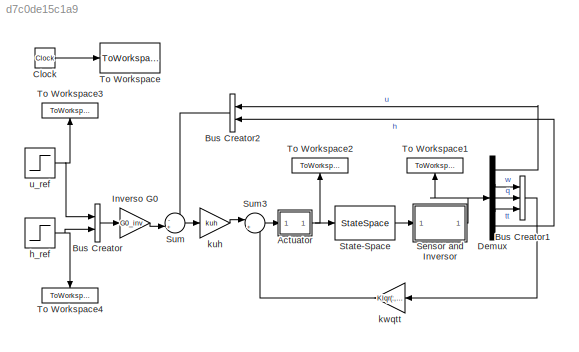
MODEL slx_d7c0de15c1a9
KIND model
CONFIG AbsTol = auto
CONFIG EnableMultiTasking = off
CONFIG FixedStep = auto
CONFIG MaxStep = auto
CONFIG MinStep = auto
CONFIG RelTol = 1e-3
CONFIG SampleTimeConstraint = Unconstrained
CONFIG Solver = VariableStepAuto
CONFIG SolverName = VariableStepAuto
CONFIG StartTime = 0.0
CONFIG StopTime = 100
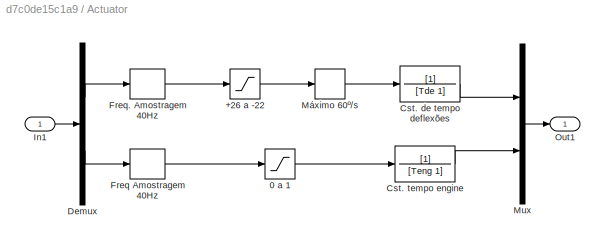
BLOCK [SubSystem] Actuator
  Ports = [1, 1]
  RequestExecContextInheritance = off
BLOCK [Saturate] Actuator/+26 a -22
  LowerLimit = demin
  UpperLimit = demax
BLOCK [Saturate] Actuator/0 a 1
  LowerLimit = dtmin
  UpperLimit = dtmax
BLOCK [TransferFcn] Actuator/Cst. de tempo deflexões
  Denominator = [Tde 1]
BLOCK [TransferFcn] Actuator/Cst. tempo engine
  Denominator = [Teng 1]
BLOCK [Demux] Actuator/Demux
  Outputs = 2
  Ports = [1, 2]
BLOCK [ZeroOrderHold] Actuator/Freq Amostragem 40Hz
  SampleTime = 1/f_amostr
BLOCK [ZeroOrderHold] Actuator/Freq. Amostragem 40Hz
  SampleTime = 1/f_amostr
BLOCK [Inport] Actuator/In1
BLOCK [Mux] Actuator/Mux
  DisplayOption = bar
  Inputs = 2
  Ports = [2, 1]
BLOCK [RateLimiter] Actuator/Máximo 60º//s
  FallingSlewLimit = vmin_de
  LinearizeAsGain = off
  RisingSlewLimit = vmax_de
  SampleTimeMode = inherited
BLOCK [Outport] Actuator/Out1
BLOCK [BusCreator] Bus Creator
  DisplayOption = bar
  InheritFromInputs = on
  Inputs = 2
  Ports = [2, 1]
BLOCK [BusCreator] Bus Creator1
  DisplayOption = bar
  InheritFromInputs = on
  Inputs = 3
  Ports = [3, 1]
BLOCK [BusCreator] Bus Creator2
  DisplayOption = bar
  InheritFromInputs = on
  Inputs = 2
  NameLocation = top
  Ports = [2, 1]
BLOCK [Clock] Clock
BLOCK [Demux] Demux
  Outputs = 5
  Ports = [1, 5]
BLOCK [Gain] Inverso G0
  Gain = G0_inv
  Multiplication = Matrix(K*u)
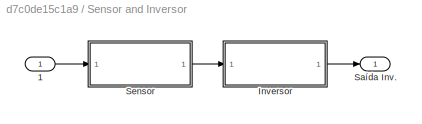
BLOCK [SubSystem] Sensor and Inversor
  Ports = [1, 1]
  RequestExecContextInheritance = off
BLOCK [Inport] Sensor and Inversor/1
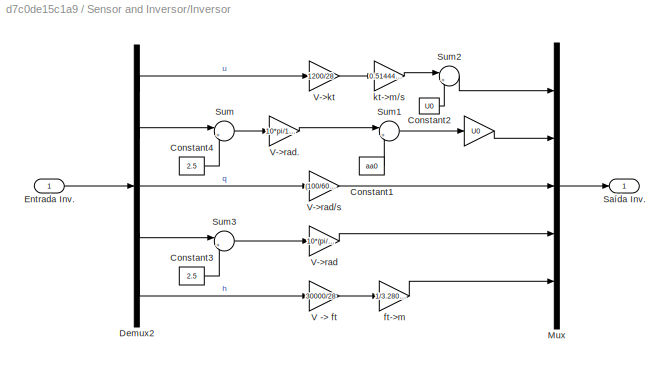
BLOCK [SubSystem] Sensor and Inversor/Inversor
  Ports = [1, 1]
  RequestExecContextInheritance = off
BLOCK [Gain] Sensor and Inversor/Inversor/ 
  Gain = U0
BLOCK [Constant] Sensor and Inversor/Inversor/Constant1
  Value = aa0
BLOCK [Constant] Sensor and Inversor/Inversor/Constant2
  Value = U0
BLOCK [Constant] Sensor and Inversor/Inversor/Constant3
  Value = 2.5
BLOCK [Constant] Sensor and Inversor/Inversor/Constant4
  Value = 2.5
BLOCK [Demux] Sensor and Inversor/Inversor/Demux2
  Outputs = 5
  Ports = [1, 5]
BLOCK [Inport] Sensor and Inversor/Inversor/Entrada Inv.
BLOCK [Mux] Sensor and Inversor/Inversor/Mux
  DisplayOption = bar
  Inputs = 5
  Ports = [5, 1]
BLOCK [Outport] Sensor and Inversor/Inversor/Saída Inv.
  VectorParamsAs1DForOutWhenUnconnected = off
BLOCK [Sum] Sensor and Inversor/Inversor/Sum
  Inputs = |+-
  Ports = [2, 1]
BLOCK [Sum] Sensor and Inversor/Inversor/Sum1
  Inputs = |+-
  Ports = [2, 1]
BLOCK [Sum] Sensor and Inversor/Inversor/Sum2
  Inputs = |+-
  Ports = [2, 1]
BLOCK [Sum] Sensor and Inversor/Inversor/Sum3
  Inputs = |+-
  Ports = [2, 1]
BLOCK [Gain] Sensor and Inversor/Inversor/V -> ft
  Gain = 30000/28
BLOCK [Gain] Sensor and Inversor/Inversor/V->kt
  Gain = 1200/28
BLOCK [Gain] Sensor and Inversor/Inversor/V->rad
  Gain = 10*(pi/180)
BLOCK [Gain] Sensor and Inversor/Inversor/V->rad.
  Gain = 10*pi/180
BLOCK [Gain] Sensor and Inversor/Inversor/V->rad//s
  Gain = (100/60)*pi/180
BLOCK [Gain] Sensor and Inversor/Inversor/ft->m
  Gain = 1/3.2808399
BLOCK [Gain] Sensor and Inversor/Inversor/kt->m//s
  Gain = 0.5144444
BLOCK [Outport] Sensor and Inversor/Saída Inv.
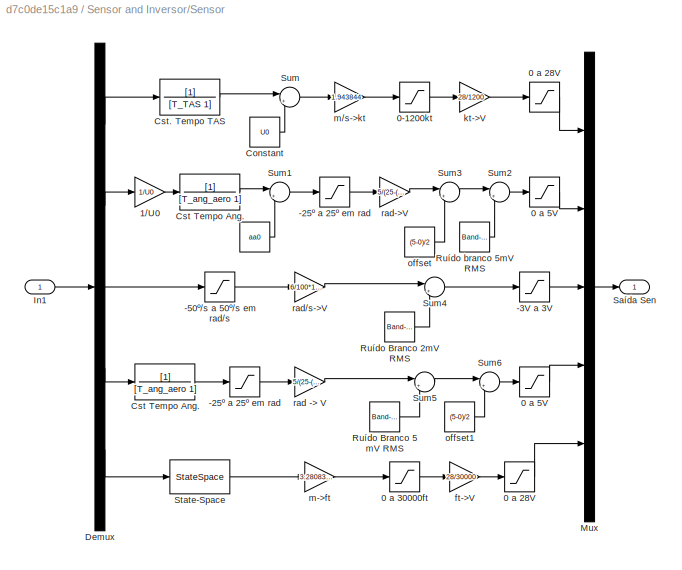
BLOCK [SubSystem] Sensor and Inversor/Sensor
  Ports = [1, 1]
  RequestExecContextInheritance = off
BLOCK [Constant] Sensor and Inversor/Sensor/ 
  Value = aa0
BLOCK [Saturate] Sensor and Inversor/Sensor/-25º a 25º em rad
  LowerLimit = -25*(pi/180)
  UpperLimit = 25*(pi/180)
BLOCK [Saturate] Sensor and Inversor/Sensor/-25º a 25º em rad 
  LowerLimit = -25*(pi/180)
  UpperLimit = 25*(pi/180)
BLOCK [Saturate] Sensor and Inversor/Sensor/-3V a 3V
  LowerLimit = -3
  UpperLimit = 3
BLOCK [Saturate] Sensor and Inversor/Sensor/-50º//s a 50º//s em rad//s
  LowerLimit = -50*(pi/180)
  UpperLimit = 50*(pi/180)
BLOCK [Saturate] Sensor and Inversor/Sensor/0 a 28V
  LowerLimit = 0
  UpperLimit = 28
BLOCK [Saturate] Sensor and Inversor/Sensor/0 a 28V 
  LowerLimit = -1
  UpperLimit = 28
BLOCK [Saturate] Sensor and Inversor/Sensor/0 a 30000ft
  LowerLimit = 0
  UpperLimit = 30000
BLOCK [Saturate] Sensor and Inversor/Sensor/0 a 5V
  LowerLimit = 0
  UpperLimit = 5
BLOCK [Saturate] Sensor and Inversor/Sensor/0 a 5V 
  LowerLimit = -5
  UpperLimit = 5
BLOCK [Saturate] Sensor and Inversor/Sensor/0-1200kt
  LowerLimit = 0
  UpperLimit = 1200
BLOCK [Gain] Sensor and Inversor/Sensor/1//U0
  Gain = 1/U0
BLOCK [Constant] Sensor and Inversor/Sensor/Constant
  Value = U0
BLOCK [TransferFcn] Sensor and Inversor/Sensor/Cst Tempo Ang.
  Denominator = [T_ang_aero 1]
BLOCK [TransferFcn] Sensor and Inversor/Sensor/Cst. Tempo TAS 
  Denominator = [T_TAS 1]
BLOCK [Demux] Sensor and Inversor/Sensor/Demux
  Outputs = 5
  Ports = [1, 5]
BLOCK [Inport] Sensor and Inversor/Sensor/In1
BLOCK [Mux] Sensor and Inversor/Sensor/Mux
  DisplayOption = bar
  Inputs = 5
  Ports = [5, 1]
BLOCK [Reference] Sensor and Inversor/Sensor/Ruído Branco 2mV RMS  REF=simulink/Sources/Band-Limited
White Noise
  Ports = [0, 1]
  SourceBlock = simulink/Sources/Band-Limited\nWhite Noise
  SourceProductBaseCode = SL
  SourceType = Band-Limited White Noise.
BLOCK [Reference] Sensor and Inversor/Sensor/Ruído Branco 5 mV RMS  REF=simulink/Sources/Band-Limited
White Noise
  Ports = [0, 1]
  SourceBlock = simulink/Sources/Band-Limited\nWhite Noise
  SourceProductBaseCode = SL
  SourceType = Band-Limited White Noise.
BLOCK [Reference] Sensor and Inversor/Sensor/Ruído branco 5mV RMS  REF=simulink/Sources/Band-Limited
White Noise
  Ports = [0, 1]
  SourceBlock = simulink/Sources/Band-Limited\nWhite Noise
  SourceProductBaseCode = SL
  SourceType = Band-Limited White Noise.
BLOCK [Outport] Sensor and Inversor/Sensor/Saída Sen
BLOCK [StateSpace] Sensor and Inversor/Sensor/State-Space
  A = A_sensorh
  B = B_sensorh
  C = C_sensorh
  D = D_sensorh
  InitialCondition = 762
  Ports = [1, 1]
BLOCK [Sum] Sensor and Inversor/Sensor/Sum
  Inputs = |++
  Ports = [2, 1]
BLOCK [Sum] Sensor and Inversor/Sensor/Sum1
  Inputs = |++
  Ports = [2, 1]
BLOCK [Sum] Sensor and Inversor/Sensor/Sum2
  Inputs = |++
  Ports = [2, 1]
BLOCK [Sum] Sensor and Inversor/Sensor/Sum3
  Inputs = |++
  Ports = [2, 1]
BLOCK [Sum] Sensor and Inversor/Sensor/Sum4
  Inputs = |++
  Ports = [2, 1]
BLOCK [Sum] Sensor and Inversor/Sensor/Sum5
  Inputs = |++
  Ports = [2, 1]
BLOCK [Sum] Sensor and Inversor/Sensor/Sum6
  Inputs = |++
  Ports = [2, 1]
BLOCK [Gain] Sensor and Inversor/Sensor/ft->V
  Gain = 28/30000
BLOCK [Gain] Sensor and Inversor/Sensor/kt->V
  Gain = 28/1200
BLOCK [Gain] Sensor and Inversor/Sensor/m->ft
  Gain = 3.2808399
BLOCK [Gain] Sensor and Inversor/Sensor/m//s->kt
  Gain = 1.943844
BLOCK [Constant] Sensor and Inversor/Sensor/offset
  Value = (5-0)/2
BLOCK [Constant] Sensor and Inversor/Sensor/offset1
  Value = (5-0)/2
BLOCK [Gain] Sensor and Inversor/Sensor/rad -> V
  Gain = 5/(25-(-25))*180/pi
BLOCK [Gain] Sensor and Inversor/Sensor/rad->V
  Gain = 5/(25-(-25))*180/pi
BLOCK [Gain] Sensor and Inversor/Sensor/rad//s->V
  Gain = 6/100*180/pi
BLOCK [StateSpace] State-Space
  A = A_lqr
  B = B_lqr
  C = C_lqr
  D = D_lqr
  InitialCondition = [0,0,0,0,h]
  Ports = [1, 1]
BLOCK [Sum] Sum
  Inputs = -+|
  Ports = [2, 1]
BLOCK [Sum] Sum3
  Inputs = |+-
  Ports = [2, 1]
BLOCK [ToWorkspace] To Workspace
  FixptAsFi = on
  MaxDataPoints = inf
  Ports = [1]
  SampleTime = -1
  VariableName = time
BLOCK [ToWorkspace] To Workspace1
  FixptAsFi = on
  MaxDataPoints = inf
  NameLocation = right
  Ports = [1]
  SampleTime = 0.1
  SaveFormat = Structure With Time
  VariableName = Variaveis
BLOCK [ToWorkspace] To Workspace2
  FixptAsFi = on
  MaxDataPoints = inf
  NameLocation = right
  Ports = [1]
  SampleTime = 0.1
  SaveFormat = Structure With Time
  VariableName = Inputs
BLOCK [ToWorkspace] To Workspace3
  FixptAsFi = on
  MaxDataPoints = inf
  NameLocation = right
  Ports = [1]
  SampleTime = 0.1
  SaveFormat = Structure With Time
  VariableName = u_ref
BLOCK [ToWorkspace] To Workspace4
  FixptAsFi = on
  MaxDataPoints = inf
  NameLocation = left
  Ports = [1]
  SampleTime = 0.1
  SaveFormat = Structure With Time
  VariableName = h_ref
BLOCK [Step] h_ref 
  After = h+10
  Before = h
  SampleTime = 50
BLOCK [Gain] kuh
  Gain = kuh
  Multiplication = Matrix(K*u)
BLOCK [Gain] kwqtt
  Gain = Klqr(:,2:4)
  Multiplication = Matrix(K*u)
  NameLocation = top
BLOCK [Step] u_ref
  After = 3
  SampleTime = 0
LINE Actuator/+26 a -22:1 -> Actuator/Máximo 60º//s:1
LINE Actuator/0 a 1:1 -> Actuator/Cst. tempo engine:1
LINE Actuator/Cst. de tempo deflexões:1 -> Actuator/Mux:1
LINE Actuator/Cst. tempo engine:1 -> Actuator/Mux:2
LINE Actuator/Demux:1 -> Actuator/Freq. Amostragem 40Hz:1
LINE Actuator/Demux:2 -> Actuator/Freq Amostragem 40Hz:1
LINE Actuator/Freq Amostragem 40Hz:1 -> Actuator/0 a 1:1
LINE Actuator/Freq. Amostragem 40Hz:1 -> Actuator/+26 a -22:1
LINE Actuator/In1:1 -> Actuator/Demux:1
LINE Actuator/Mux:1 -> Actuator/Out1:1
LINE Actuator/Máximo 60º//s:1 -> Actuator/Cst. de tempo deflexões:1
NET Actuator:1 -> State-Space:1, To Workspace2:1
LINE Bus Creator1:1 -> kwqtt:1
LINE Bus Creator2:1 -> Sum:1
LINE Bus Creator:1 -> Inverso G0:1
LINE Clock:1 -> To Workspace:1
LINE Demux:1 -> Bus Creator2:1
LINE Demux:2 -> Bus Creator1:1
LINE Demux:3 -> Bus Creator1:2
LINE Demux:4 -> Bus Creator1:3
LINE Demux:5 -> Bus Creator2:2
LINE Inverso G0:1 -> Sum:2
LINE Sensor and Inversor/1:1 -> Sensor and Inversor/Sensor:1
LINE Sensor and Inversor/Inversor/ :1 -> Sensor and Inversor/Inversor/Mux:2
LINE Sensor and Inversor/Inversor/Constant1:1 -> Sensor and Inversor/Inversor/Sum1:2
LINE Sensor and Inversor/Inversor/Constant2:1 -> Sensor and Inversor/Inversor/Sum2:2
LINE Sensor and Inversor/Inversor/Constant3:1 -> Sensor and Inversor/Inversor/Sum3:2
LINE Sensor and Inversor/Inversor/Constant4:1 -> Sensor and Inversor/Inversor/Sum:2
LINE Sensor and Inversor/Inversor/Demux2:1 -> Sensor and Inversor/Inversor/V->kt:1
LINE Sensor and Inversor/Inversor/Demux2:2 -> Sensor and Inversor/Inversor/Sum:1
LINE Sensor and Inversor/Inversor/Demux2:3 -> Sensor and Inversor/Inversor/V->rad//s:1
LINE Sensor and Inversor/Inversor/Demux2:4 -> Sensor and Inversor/Inversor/Sum3:1
LINE Sensor and Inversor/Inversor/Demux2:5 -> Sensor and Inversor/Inversor/V -> ft:1
LINE Sensor and Inversor/Inversor/Entrada Inv.:1 -> Sensor and Inversor/Inversor/Demux2:1
LINE Sensor and Inversor/Inversor/Mux:1 -> Sensor and Inversor/Inversor/Saída Inv.:1
LINE Sensor and Inversor/Inversor/Sum1:1 -> Sensor and Inversor/Inversor/ :1
LINE Sensor and Inversor/Inversor/Sum2:1 -> Sensor and Inversor/Inversor/Mux:1
LINE Sensor and Inversor/Inversor/Sum3:1 -> Sensor and Inversor/Inversor/V->rad:1
LINE Sensor and Inversor/Inversor/Sum:1 -> Sensor and Inversor/Inversor/V->rad.:1
LINE Sensor and Inversor/Inversor/V -> ft:1 -> Sensor and Inversor/Inversor/ft->m:1
LINE Sensor and Inversor/Inversor/V->kt:1 -> Sensor and Inversor/Inversor/kt->m//s:1
LINE Sensor and Inversor/Inversor/V->rad.:1 -> Sensor and Inversor/Inversor/Sum1:1
LINE Sensor and Inversor/Inversor/V->rad//s:1 -> Sensor and Inversor/Inversor/Mux:3
LINE Sensor and Inversor/Inversor/V->rad:1 -> Sensor and Inversor/Inversor/Mux:4
LINE Sensor and Inversor/Inversor/ft->m:1 -> Sensor and Inversor/Inversor/Mux:5
LINE Sensor and Inversor/Inversor/kt->m//s:1 -> Sensor and Inversor/Inversor/Sum2:1
LINE Sensor and Inversor/Inversor:1 -> Sensor and Inversor/Saída Inv.:1
LINE Sensor and Inversor/Sensor/ :1 -> Sensor and Inversor/Sensor/Sum1:2
LINE Sensor and Inversor/Sensor/-25º a 25º em rad :1 -> Sensor and Inversor/Sensor/rad -> V:1
LINE Sensor and Inversor/Sensor/-25º a 25º em rad:1 -> Sensor and Inversor/Sensor/rad->V:1
LINE Sensor and Inversor/Sensor/-3V a 3V:1 -> Sensor and Inversor/Sensor/Mux:3
LINE Sensor and Inversor/Sensor/-50º//s a 50º//s em rad//s:1 -> Sensor and Inversor/Sensor/rad//s->V:1
LINE Sensor and Inversor/Sensor/0 a 28V :1 -> Sensor and Inversor/Sensor/Mux:5
LINE Sensor and Inversor/Sensor/0 a 28V:1 -> Sensor and Inversor/Sensor/Mux:1
LINE Sensor and Inversor/Sensor/0 a 30000ft:1 -> Sensor and Inversor/Sensor/ft->V:1
LINE Sensor and Inversor/Sensor/0 a 5V :1 -> Sensor and Inversor/Sensor/Mux:4
LINE Sensor and Inversor/Sensor/0 a 5V:1 -> Sensor and Inversor/Sensor/Mux:2
LINE Sensor and Inversor/Sensor/0-1200kt:1 -> Sensor and Inversor/Sensor/kt->V:1
LINE Sensor and Inversor/Sensor/1//U0:1 -> Sensor and Inversor/Sensor/Cst Tempo Ang.:1
LINE Sensor and Inversor/Sensor/Constant:1 -> Sensor and Inversor/Sensor/Sum:2
NET Sensor and Inversor/Sensor/Cst Tempo Ang.:1 -> Sensor and Inversor/Sensor/-25º a 25º em rad :1, Sensor and Inversor/Sensor/Sum1:1
LINE Sensor and Inversor/Sensor/Cst. Tempo TAS :1 -> Sensor and Inversor/Sensor/Sum:1
LINE Sensor and Inversor/Sensor/Demux:1 -> Sensor and Inversor/Sensor/Cst. Tempo TAS :1
LINE Sensor and Inversor/Sensor/Demux:2 -> Sensor and Inversor/Sensor/1//U0:1
LINE Sensor and Inversor/Sensor/Demux:3 -> Sensor and Inversor/Sensor/-50º//s a 50º//s em rad//s:1
LINE Sensor and Inversor/Sensor/Demux:4 -> Sensor and Inversor/Sensor/Cst Tempo Ang.:1
LINE Sensor and Inversor/Sensor/Demux:5 -> Sensor and Inversor/Sensor/State-Space:1
LINE Sensor and Inversor/Sensor/In1:1 -> Sensor and Inversor/Sensor/Demux:1
LINE Sensor and Inversor/Sensor/Mux:1 -> Sensor and Inversor/Sensor/Saída Sen:1
LINE Sensor and Inversor/Sensor/Ruído Branco 2mV RMS:1 -> Sensor and Inversor/Sensor/Sum4:2
LINE Sensor and Inversor/Sensor/Ruído Branco 5 mV RMS:1 -> Sensor and Inversor/Sensor/Sum5:2
LINE Sensor and Inversor/Sensor/Ruído branco 5mV RMS:1 -> Sensor and Inversor/Sensor/Sum2:2
LINE Sensor and Inversor/Sensor/State-Space:1 -> Sensor and Inversor/Sensor/m->ft:1
LINE Sensor and Inversor/Sensor/Sum1:1 -> Sensor and Inversor/Sensor/-25º a 25º em rad:1
LINE Sensor and Inversor/Sensor/Sum2:1 -> Sensor and Inversor/Sensor/0 a 5V:1
LINE Sensor and Inversor/Sensor/Sum3:1 -> Sensor and Inversor/Sensor/Sum2:1
LINE Sensor and Inversor/Sensor/Sum4:1 -> Sensor and Inversor/Sensor/-3V a 3V:1
LINE Sensor and Inversor/Sensor/Sum5:1 -> Sensor and Inversor/Sensor/Sum6:1
LINE Sensor and Inversor/Sensor/Sum6:1 -> Sensor and Inversor/Sensor/0 a 5V :1
LINE Sensor and Inversor/Sensor/Sum:1 -> Sensor and Inversor/Sensor/m//s->kt:1
LINE Sensor and Inversor/Sensor/ft->V:1 -> Sensor and Inversor/Sensor/0 a 28V :1
LINE Sensor and Inversor/Sensor/kt->V:1 -> Sensor and Inversor/Sensor/0 a 28V:1
LINE Sensor and Inversor/Sensor/m->ft:1 -> Sensor and Inversor/Sensor/0 a 30000ft:1
LINE Sensor and Inversor/Sensor/m//s->kt:1 -> Sensor and Inversor/Sensor/0-1200kt:1
LINE Sensor and Inversor/Sensor/offset1:1 -> Sensor and Inversor/Sensor/Sum6:2
LINE Sensor and Inversor/Sensor/offset:1 -> Sensor and Inversor/Sensor/Sum3:2
LINE Sensor and Inversor/Sensor/rad -> V:1 -> Sensor and Inversor/Sensor/Sum5:1
LINE Sensor and Inversor/Sensor/rad->V:1 -> Sensor and Inversor/Sensor/Sum3:1
LINE Sensor and Inversor/Sensor/rad//s->V:1 -> Sensor and Inversor/Sensor/Sum4:1
LINE Sensor and Inversor/Sensor:1 -> Sensor and Inversor/Inversor:1
NET Sensor and Inversor:1 -> Demux:1, To Workspace1:1
LINE State-Space:1 -> Sensor and Inversor:1
LINE Sum3:1 -> Actuator:1
LINE Sum:1 -> kuh:1
NET h_ref :1 -> Bus Creator:2, To Workspace4:1
LINE kuh:1 -> Sum3:1
LINE kwqtt:1 -> Sum3:2
NET u_ref:1 -> Bus Creator:1, To Workspace3:1
note: NET lines group one-source signal fan-out (src -> all destinations, sorted); 1:1 wires keep LINE
